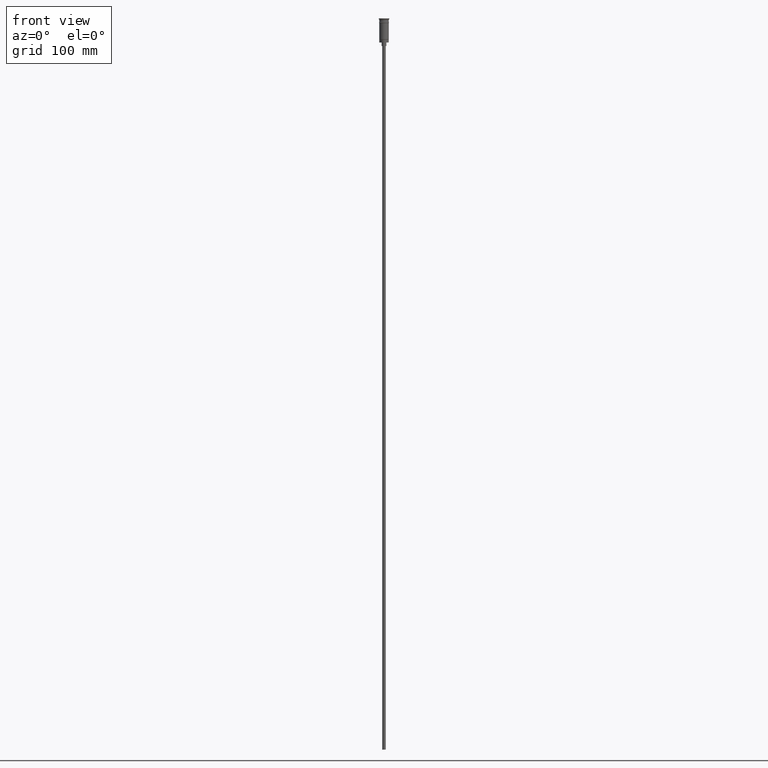
[diagram: clean part render]
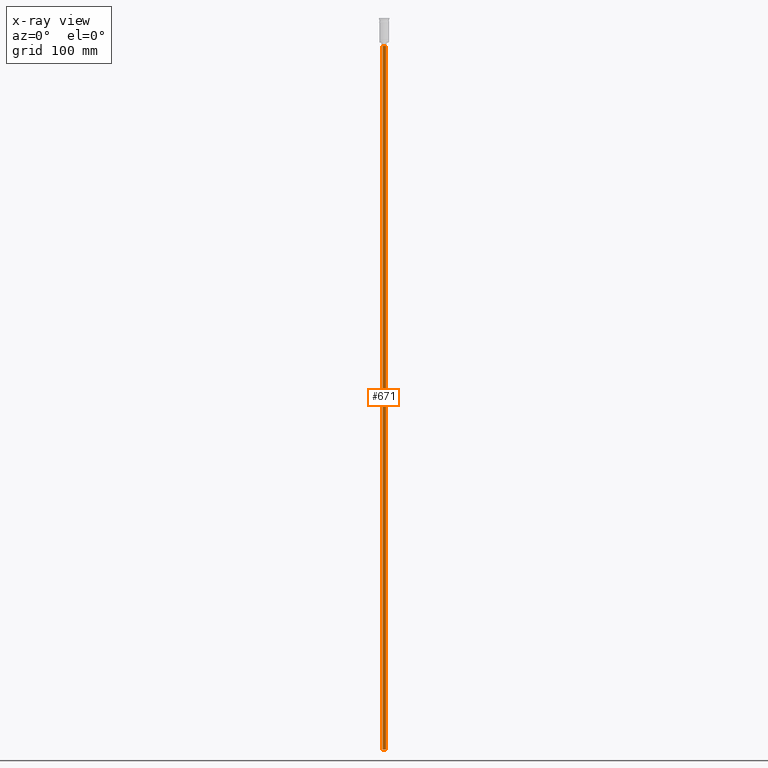
[diagram: x-ray — body ghosted, one internal face saturated and labeled with its STEP entity id]
A machine part, front view, then the same camera in x-ray: the body is ghosted and one INTERNAL B-rep face — a face not visible from any outside direction — is saturated and labeled: STEP entity #671.
In plain terms, the highlighted cylindrical surface (edge-blend (fillet) strip) has radius 1.5 mm, axis along (-0, -0, 1).
Its self-contained STEP definition (entity closure, byte-faithful):
#61 = VERTEX_POINT ( 'NONE', #1315 ) ;
#76 = CARTESIAN_POINT ( 'NONE',  ( -1.500000000000000222, 1.836970198721030181E-16, -620.4999999999998863 ) ) ;
#153 = VECTOR ( 'NONE', #1074, 1000.000000000000000 ) ;
#314 = DIRECTION ( 'NONE',  ( -0.000000000000000000, -0.000000000000000000, 1.000000000000000000 ) ) ;
#322 = LINE ( 'NONE', #76, #632 ) ;
#345 = DIRECTION ( 'NONE',  ( 0.000000000000000000, 0.000000000000000000, -1.000000000000000000 ) ) ;
#351 = CIRCLE ( 'NONE', #527, 1.500000000000000222 ) ;
#360 = VERTEX_POINT ( 'NONE', #987 ) ;
#412 = VERTEX_POINT ( 'NONE', #421 ) ;
#421 = CARTESIAN_POINT ( 'NONE',  ( 1.500000000000000222, 0.000000000000000000, -620.4999999999998863 ) ) ;
#431 = EDGE_CURVE ( 'NONE', #537, #61, #682, .T. ) ;
#434 = DIRECTION ( 'NONE',  ( 1.000000000000000000, 0.000000000000000000, 0.000000000000000000 ) ) ;
#440 = CARTESIAN_POINT ( 'NONE',  ( -1.500000000000000222, 1.836970198721030181E-16, -23.49999999999999645 ) ) ;
#465 = EDGE_LOOP ( 'NONE', ( #1266, #941, #825, #1513 ) ) ;
#527 = AXIS2_PLACEMENT_3D ( 'NONE', #1214, #345, #1228 ) ;
#537 = VERTEX_POINT ( 'NONE', #440 ) ;
#546 = FACE_OUTER_BOUND ( 'NONE', #465, .T. ) ;
#571 = EDGE_CURVE ( 'NONE', #412, #61, #1064, .T. ) ;
#611 = DIRECTION ( 'NONE',  ( -1.000000000000000000, 0.000000000000000000, 0.000000000000000000 ) ) ;
#632 = VECTOR ( 'NONE', #314, 1000.000000000000000 ) ;
#671 = ADVANCED_FACE ( 'NONE', ( #546 ), #1431, .T. ) ;
#682 = CIRCLE ( 'NONE', #1104, 1.500000000000000222 ) ;
#704 = EDGE_CURVE ( 'NONE', #360, #412, #351, .T. ) ;
#825 = ORIENTED_EDGE ( 'NONE', *, *, #431, .T. ) ;
#941 = ORIENTED_EDGE ( 'NONE', *, *, #1010, .T. ) ;
#985 = DIRECTION ( 'NONE',  ( 0.000000000000000000, 0.000000000000000000, -1.000000000000000000 ) ) ;
#987 = CARTESIAN_POINT ( 'NONE',  ( -1.500000000000000222, 1.836970198721030181E-16, -620.4999999999998863 ) ) ;
#1010 = EDGE_CURVE ( 'NONE', #360, #537, #322, .T. ) ;
#1048 = AXIS2_PLACEMENT_3D ( 'NONE', #1055, #1553, #434 ) ;
#1055 = CARTESIAN_POINT ( 'NONE',  ( 0.000000000000000000, 0.000000000000000000, -620.4999999999998863 ) ) ;
#1064 = LINE ( 'NONE', #1560, #153 ) ;
#1074 = DIRECTION ( 'NONE',  ( -0.000000000000000000, -0.000000000000000000, 1.000000000000000000 ) ) ;
#1104 = AXIS2_PLACEMENT_3D ( 'NONE', #1578, #985, #611 ) ;
#1214 = CARTESIAN_POINT ( 'NONE',  ( 0.000000000000000000, 0.000000000000000000, -620.4999999999998863 ) ) ;
#1228 = DIRECTION ( 'NONE',  ( -1.000000000000000000, 0.000000000000000000, 0.000000000000000000 ) ) ;
#1266 = ORIENTED_EDGE ( 'NONE', *, *, #704, .F. ) ;
#1315 = CARTESIAN_POINT ( 'NONE',  ( 1.500000000000000222, 0.000000000000000000, -23.49999999999999645 ) ) ;
#1431 = CYLINDRICAL_SURFACE ( 'NONE', #1048, 1.500000000000000222 ) ;
#1513 = ORIENTED_EDGE ( 'NONE', *, *, #571, .F. ) ;
#1553 = DIRECTION ( 'NONE',  ( -0.000000000000000000, -0.000000000000000000, 1.000000000000000000 ) ) ;
#1560 = CARTESIAN_POINT ( 'NONE',  ( 1.500000000000000222, 0.000000000000000000, -620.4999999999998863 ) ) ;
#1578 = CARTESIAN_POINT ( 'NONE',  ( 0.000000000000000000, 0.000000000000000000, -23.49999999999999645 ) ) ;